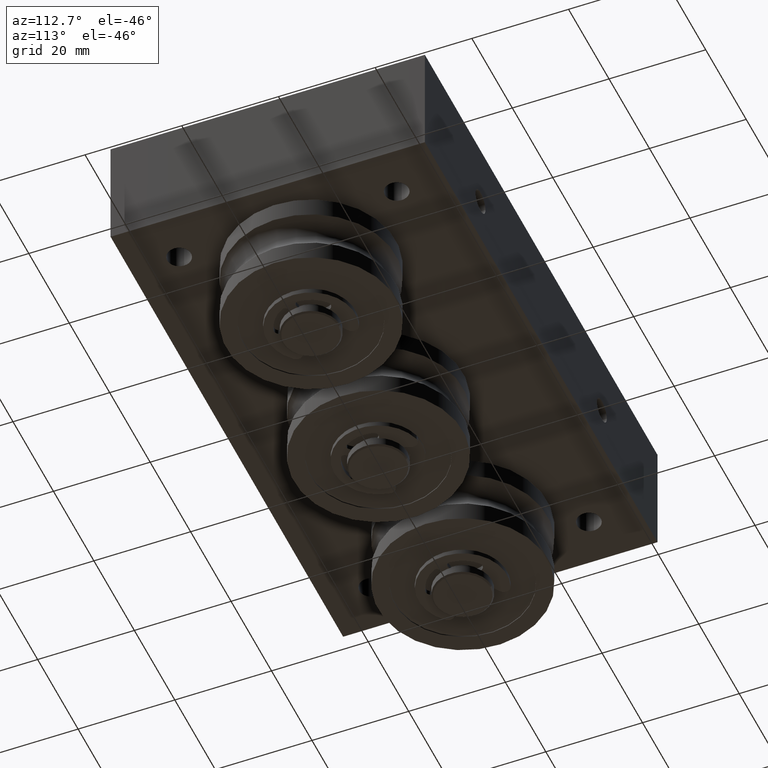
[diagram: clean part render]
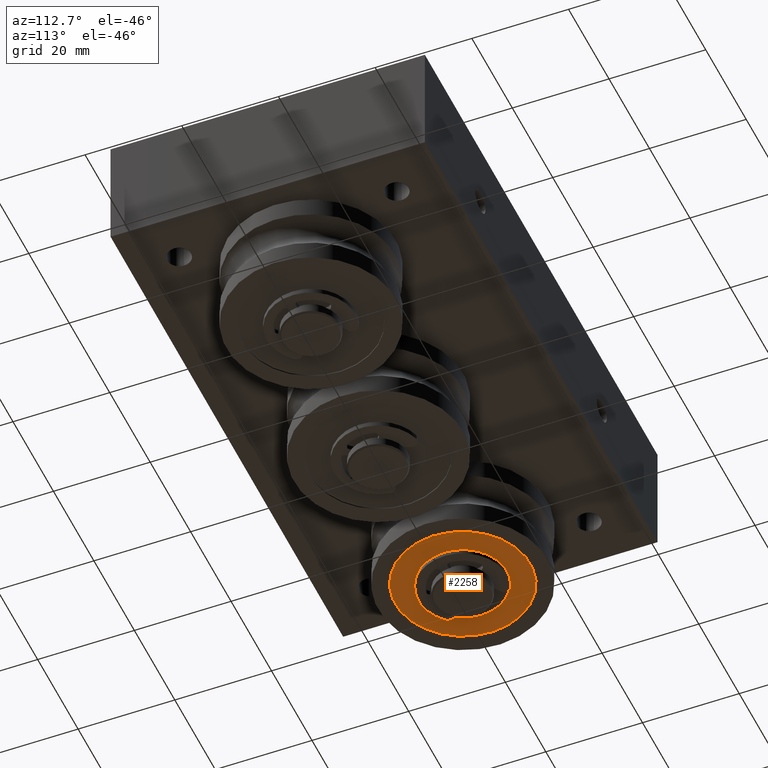
[diagram: same view with one face highlighted and labeled with its STEP entity id]
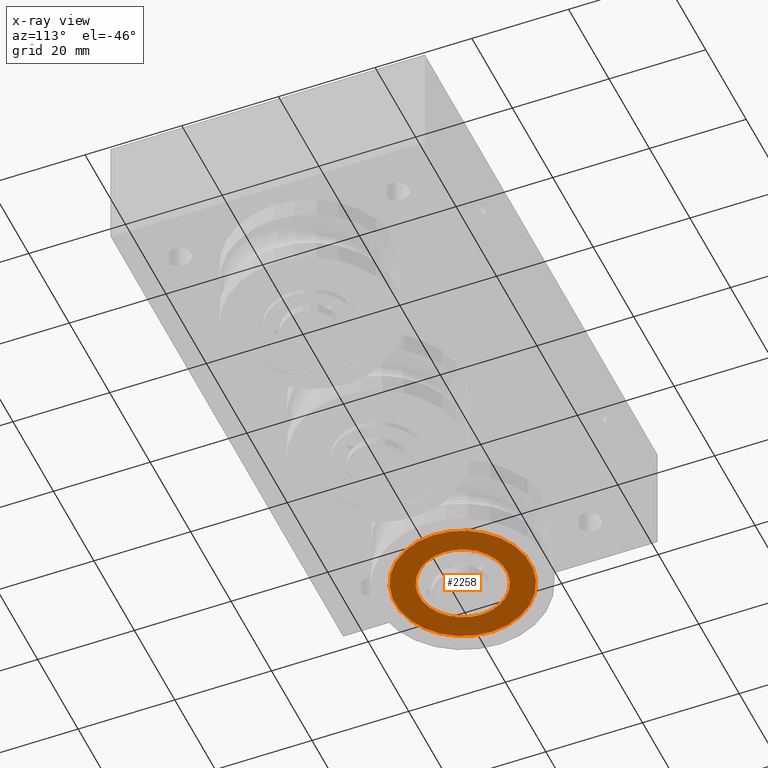
[diagram: x-ray of the same camera — body ghosted, the highlighted face saturated]
A machine part, auxiliary view. The second image highlights one B-rep face of the part: STEP entity #2258.
The next image is the same camera in x-ray: the body ghosted, the highlighted face saturated — about 0% of this face is hidden behind the body in this view.
In plain terms, the highlighted planar face has unit normal (-0, 0, -1).
Its self-contained STEP definition (entity closure, byte-faithful):
#189=FACE_BOUND('',#580,.T.);
#236=PLANE('',#2698);
#397=FACE_OUTER_BOUND('',#579,.T.);
#579=EDGE_LOOP('',(#1902));
#580=EDGE_LOOP('',(#1903));
#995=CIRCLE('',#2692,14.);
#997=CIRCLE('',#2695,9.);
#1165=VERTEX_POINT('',#3946);
#1167=VERTEX_POINT('',#3952);
#1417=EDGE_CURVE('',#1165,#1165,#995,.T.);
#1420=EDGE_CURVE('',#1167,#1167,#997,.T.);
#1902=ORIENTED_EDGE('',*,*,#1417,.T.);
#1903=ORIENTED_EDGE('',*,*,#1420,.T.);
#2258=ADVANCED_FACE('',(#397,#189),#236,.T.);
#2692=AXIS2_PLACEMENT_3D('',#3947,#3266,#3267);
#2695=AXIS2_PLACEMENT_3D('',#3953,#3273,#3274);
#2698=AXIS2_PLACEMENT_3D('',#3958,#3280,#3281);
#3266=DIRECTION('center_axis',(0.,0.,1.));
#3267=DIRECTION('ref_axis',(1.,0.,0.));
#3273=DIRECTION('center_axis',(0.,0.,-1.));
#3274=DIRECTION('ref_axis',(1.,0.,0.));
#3280=DIRECTION('center_axis',(0.,0.,1.));
#3281=DIRECTION('ref_axis',(1.,0.,0.));
#3946=CARTESIAN_POINT('',(-14.,0.,-0.199999999999999));
#3947=CARTESIAN_POINT('Origin',(0.,0.,-0.199999999999999));
#3952=CARTESIAN_POINT('',(-9.,0.,-0.199999999999999));
#3953=CARTESIAN_POINT('Origin',(0.,0.,-0.199999999999999));
#3958=CARTESIAN_POINT('Origin',(-16.8000055962007,-16.8000055962007,-0.199999999999999));